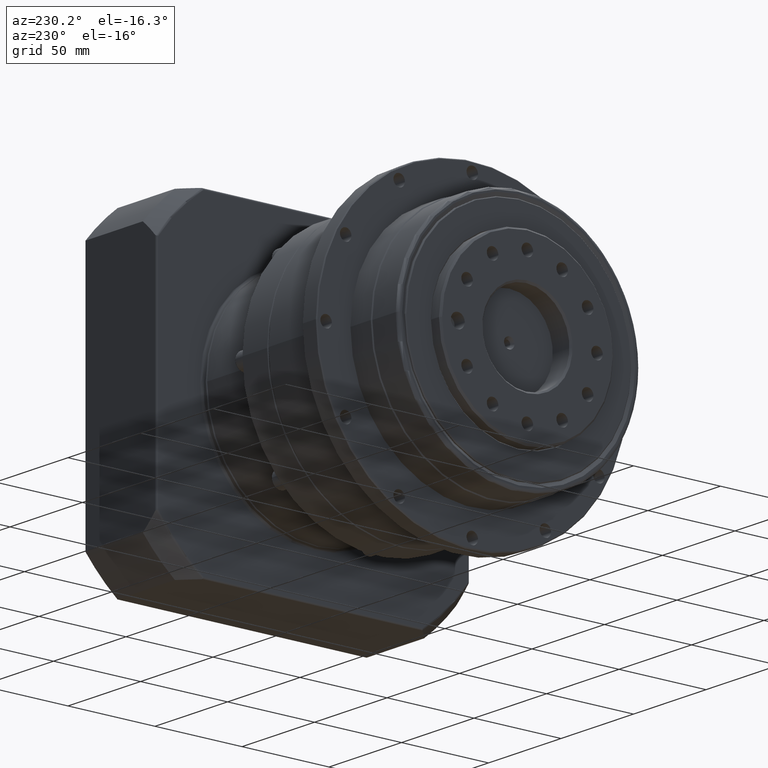
[diagram: clean part render]
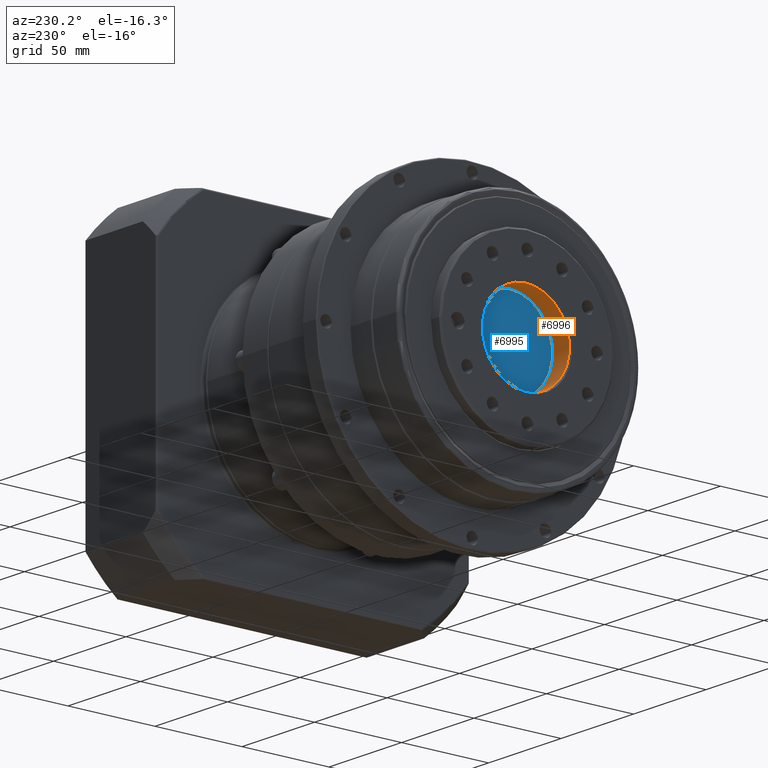
[diagram: same view with the hole feature highlighted: cylindrical wall and planar end face, labeled with their STEP entity ids]
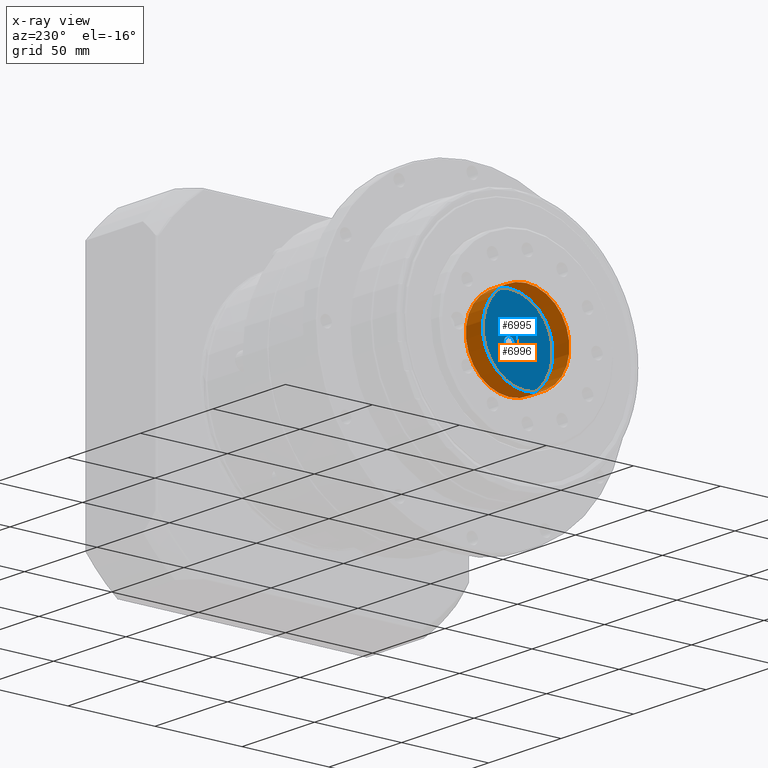
[diagram: x-ray of the same camera — body ghosted, the hole faces saturated]
A machine part, auxiliary view. The highlighted faces form one hole feature of diameter 50 mm: the cylindrical wall (entity #6996, orange) and its adjacent planar end face (entity #6995, blue) — they share a circular edge in the B-rep.
The next image is the same camera in x-ray (body ghosted, the hole faces saturated) — the bore reads through the body.
Wall:
#1337=CYLINDRICAL_SURFACE('',#7733,25.);
#1560=FACE_BOUND('',#2587,.T.);
#1942=FACE_OUTER_BOUND('',#2586,.T.);
#2586=EDGE_LOOP('',(#5699));
#2587=EDGE_LOOP('',(#5700));
#3216=CIRCLE('',#7731,25.);
#3218=CIRCLE('',#7734,25.);
#3727=VERTEX_POINT('',#11609);
#3729=VERTEX_POINT('',#11614);
#4465=EDGE_CURVE('',#3727,#3727,#3216,.T.);
#4467=EDGE_CURVE('',#3729,#3729,#3218,.T.);
#5699=ORIENTED_EDGE('',*,*,#4465,.T.);
#5700=ORIENTED_EDGE('',*,*,#4467,.F.);
#6996=ADVANCED_FACE('',(#1942,#1560),#1337,.F.);
#7731=AXIS2_PLACEMENT_3D('',#11610,#9189,#9190);
#7733=AXIS2_PLACEMENT_3D('',#11613,#9193,#9194);
#7734=AXIS2_PLACEMENT_3D('',#11615,#9195,#9196);
#9189=DIRECTION('center_axis',(1.,6.66133814775093E-16,1.46180442369326E-15));
#9190=DIRECTION('ref_axis',(1.46180442369326E-15,-2.13747046480436E-16,
-1.));
#9193=DIRECTION('center_axis',(1.,6.66133814775093E-16,1.46180442369326E-15));
#9194=DIRECTION('ref_axis',(1.46180442369326E-15,-2.13747046480436E-16,
-1.));
#9195=DIRECTION('center_axis',(1.,6.66133814775093E-16,1.46180442369326E-15));
#9196=DIRECTION('ref_axis',(1.46180442369326E-15,-2.13747046480436E-16,
-1.));
#11609=CARTESIAN_POINT('',(-214.285750061904,108.296351812799,-12.6816074776305));
#11610=CARTESIAN_POINT('Origin',(-214.285750061904,108.296351812799,-37.6816074776305));
#11613=CARTESIAN_POINT('Origin',(-226.785750061904,108.296351812799,-37.6816074776305));
#11614=CARTESIAN_POINT('',(-225.785750061904,108.296351812799,-12.6816074776305));
#11615=CARTESIAN_POINT('Origin',(-225.785750061904,108.296351812799,-37.6816074776305));
End face:
#1559=FACE_BOUND('',#2585,.T.);
#1941=FACE_OUTER_BOUND('',#2584,.T.);
#2584=EDGE_LOOP('',(#5697));
#2585=EDGE_LOOP('',(#5698));
#3216=CIRCLE('',#7731,25.);
#3217=CIRCLE('',#7732,3.);
#3727=VERTEX_POINT('',#11609);
#3728=VERTEX_POINT('',#11611);
#4465=EDGE_CURVE('',#3727,#3727,#3216,.T.);
#4466=EDGE_CURVE('',#3728,#3728,#3217,.T.);
#5697=ORIENTED_EDGE('',*,*,#4465,.F.);
#5698=ORIENTED_EDGE('',*,*,#4466,.T.);
#6648=PLANE('',#7730);
#6995=ADVANCED_FACE('',(#1941,#1559),#6648,.F.);
#7730=AXIS2_PLACEMENT_3D('',#11608,#9187,#9188);
#7731=AXIS2_PLACEMENT_3D('',#11610,#9189,#9190);
#7732=AXIS2_PLACEMENT_3D('',#11612,#9191,#9192);
#9187=DIRECTION('center_axis',(1.,6.66133814775093E-16,1.46180442369326E-15));
#9188=DIRECTION('ref_axis',(2.8421709430404E-15,0.,-1.));
#9189=DIRECTION('center_axis',(1.,6.66133814775093E-16,1.46180442369326E-15));
#9190=DIRECTION('ref_axis',(1.46180442369326E-15,-2.13747046480436E-16,
-1.));
#9191=DIRECTION('center_axis',(1.,6.66133814775093E-16,1.46180442369326E-15));
#9192=DIRECTION('ref_axis',(-1.46180442369326E-15,2.13747046480436E-16,
1.));
#11608=CARTESIAN_POINT('Origin',(-214.285750061904,108.296351812799,-37.6816074776305));
#11609=CARTESIAN_POINT('',(-214.285750061904,108.296351812799,-12.6816074776305));
#11610=CARTESIAN_POINT('Origin',(-214.285750061904,108.296351812799,-37.6816074776305));
#11611=CARTESIAN_POINT('',(-214.285750061904,108.296351812799,-34.6816074776305));
#11612=CARTESIAN_POINT('Origin',(-214.285750061904,108.296351812799,-37.6816074776305));